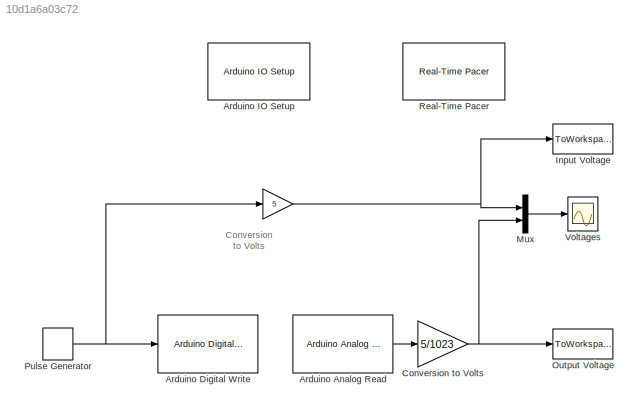
MODEL slx_10d1a6a03c72
KIND model
BLOCK [Gain]  
  Gain = 5
  OutDataTypeStr = Inherit: Inherit via internal rule
  ParamDataTypeStr = Inherit: Inherit via internal rule
  SaturateOnIntegerOverflow = off
BLOCK [Reference] Arduino Analog Read  REF=arduino_io_lib/Arduino Analog Read
  Ports = [0, 1]
  SourceBlock = arduino_io_lib/Arduino Analog Read
  SourceType = Arduino IO Analog Read
  T = Ts
  arduinoPin = 0
  arduinoVar = Temporary arduino variable: Arduino1
BLOCK [Reference] Arduino Digital Write  REF=arduino_io_lib/Arduino Digital Write
  Ports = [1]
  SourceBlock = arduino_io_lib/Arduino Digital Write
  SourceType = Arduino IO digital Write
  T = -1
  arduinoPin = 8
  arduinoVar = Temporary arduino variable: Arduino1
BLOCK [Reference] Arduino IO Setup  REF=arduino_io_lib/Arduino IO Setup
  Ports = []
  Priority = 3
  SourceBlock = arduino_io_lib/Arduino IO Setup
  SourceType = Arduino IO Setup
  arduinoVar = Temporary arduino variable: Arduino1
  comPort = COM5
  workspaceVarName = b
BLOCK [Gain] Conversion to Volts
  Gain = 5/1023
  OutDataTypeStr = Inherit: Inherit via internal rule
  ParamDataTypeStr = Inherit: Inherit via internal rule
  SaturateOnIntegerOverflow = off
BLOCK [ToWorkspace] Input Voltage
  MaxDataPoints = inf
  Ports = [1]
  SampleTime = -1
  VariableName = ei
BLOCK [Mux] Mux
  DisplayOption = bar
  Inputs = 2
  Ports = [2, 1]
BLOCK [ToWorkspace] Output Voltage
  MaxDataPoints = inf
  Ports = [1]
  SampleTime = -1
  VariableName = eo_act
BLOCK [DiscretePulseGenerator] Pulse Generator
  Period = 10/Ts
  PhaseDelay = 5/Ts
  Ports = [0, 1]
  PulseWidth = 5/Ts
  SampleTime = Ts
BLOCK [Reference] Real-Time Pacer  REF=arduino_io_lib/Real-Time Pacer
  Ports = []
  SourceBlock = arduino_io_lib/Real-Time Pacer
  SourceType = RealTime_Pacer
  simTimePerRealTime = 1
BLOCK [Scope] Voltages
  DataFormat = StructureWithTime
  Floating = off
  NumInputPorts = 1
  Ports = [1]
  SampleTime = 0
  ShowLegends = off
  ZoomMode = xonly
ANNOTATION (root): Conversion to Volts
NET  :1 -> Input Voltage:1, Mux:1
LINE Arduino Analog Read:1 -> Conversion to Volts:1
NET Conversion to Volts:1 -> Mux:2, Output Voltage:1
LINE Mux:1 -> Voltages:1
NET Pulse Generator:1 ->  :1, Arduino Digital Write:1
note: NET lines group one-source signal fan-out (src -> all destinations, sorted); 1:1 wires keep LINE
